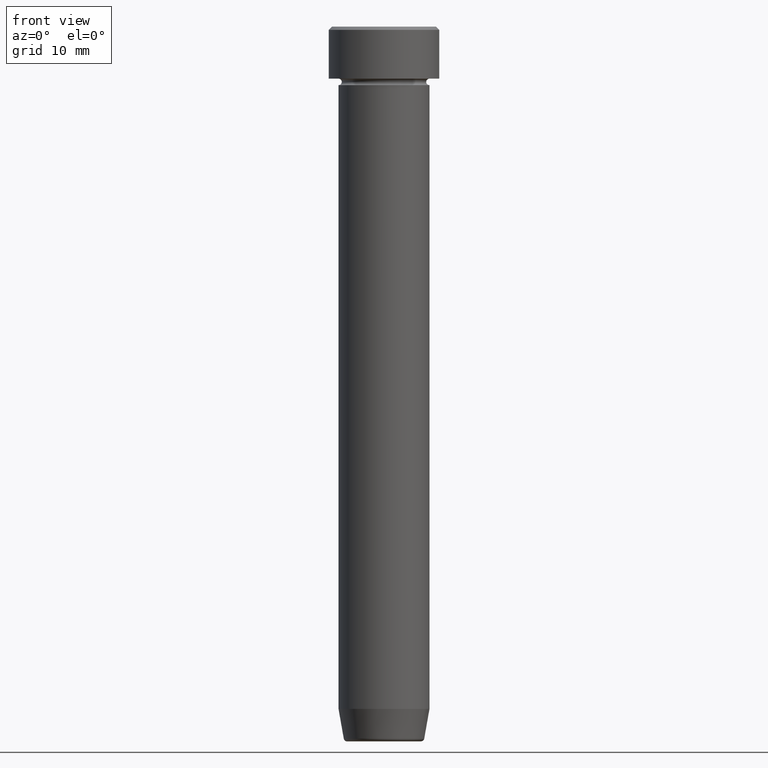
[diagram: clean part render]
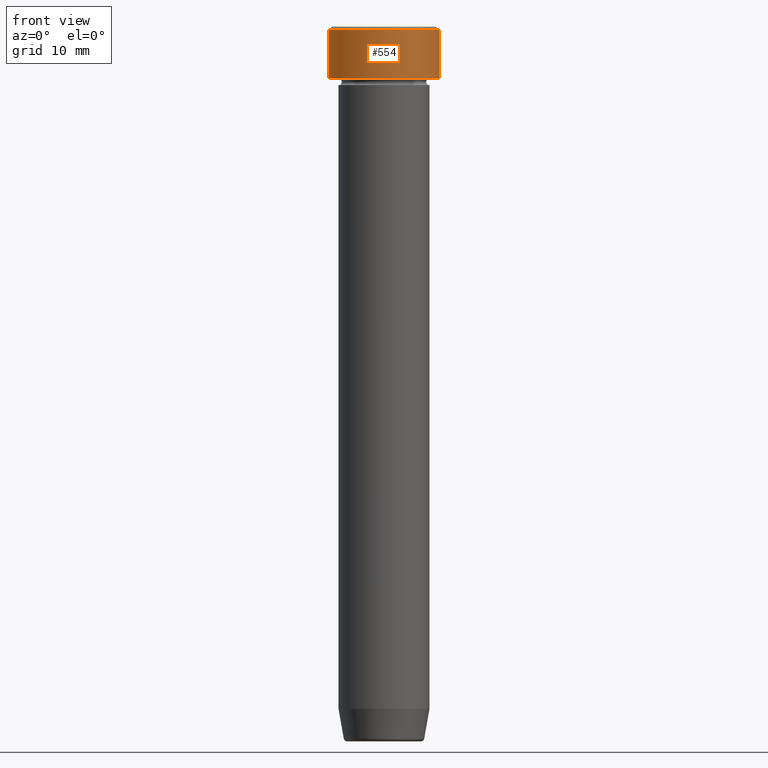
[diagram: same view with one face highlighted and labeled with its STEP entity id]
A machine part, front view. The second image highlights one B-rep face of the part: STEP entity #554.
In plain terms, the highlighted cylindrical surface (partial cylindrical patch) has radius 8.5 mm, axis along (-0, -0, 1).
Its self-contained STEP definition (entity closure, byte-faithful):
#15 = DIRECTION ( 'NONE',  ( 1.000000000000000000, 0.000000000000000000, 0.000000000000000000 ) ) ;
#19 = ORIENTED_EDGE ( 'NONE', *, *, #81, .T. ) ;
#42 = AXIS2_PLACEMENT_3D ( 'NONE', #391, #244, #248 ) ;
#55 = CARTESIAN_POINT ( 'NONE',  ( -8.500000000000000000, 1.040949779275250140E-15, 0.000000000000000000 ) ) ;
#60 = CARTESIAN_POINT ( 'NONE',  ( -8.500000000000000000, 1.040949779275250140E-15, -0.4999999999999987232 ) ) ;
#78 = ORIENTED_EDGE ( 'NONE', *, *, #473, .T. ) ;
#81 = EDGE_CURVE ( 'NONE', #235, #555, #186, .T. ) ;
#84 = VERTEX_POINT ( 'NONE', #60 ) ;
#93 = EDGE_CURVE ( 'NONE', #534, #84, #463, .T. ) ;
#135 = DIRECTION ( 'NONE',  ( -0.000000000000000000, -0.000000000000000000, 1.000000000000000000 ) ) ;
#151 = CARTESIAN_POINT ( 'NONE',  ( 0.000000000000000000, 0.000000000000000000, -8.000000000000000000 ) ) ;
#155 = EDGE_LOOP ( 'NONE', ( #426, #78, #19, #385 ) ) ;
#162 = DIRECTION ( 'NONE',  ( -0.000000000000000000, -0.000000000000000000, 1.000000000000000000 ) ) ;
#165 = CARTESIAN_POINT ( 'NONE',  ( 0.000000000000000000, 0.000000000000000000, -0.4999999999999987232 ) ) ;
#186 = LINE ( 'NONE', #289, #227 ) ;
#187 = VECTOR ( 'NONE', #162, 1000.000000000000000 ) ;
#194 = CYLINDRICAL_SURFACE ( 'NONE', #42, 8.500000000000000000 ) ;
#227 = VECTOR ( 'NONE', #387, 1000.000000000000000 ) ;
#235 = VERTEX_POINT ( 'NONE', #514 ) ;
#240 = CARTESIAN_POINT ( 'NONE',  ( -8.500000000000000000, 1.040949779275250140E-15, -8.000000000000000000 ) ) ;
#244 = DIRECTION ( 'NONE',  ( -0.000000000000000000, -0.000000000000000000, 1.000000000000000000 ) ) ;
#248 = DIRECTION ( 'NONE',  ( 1.000000000000000000, 0.000000000000000000, 0.000000000000000000 ) ) ;
#250 = AXIS2_PLACEMENT_3D ( 'NONE', #165, #267, #261 ) ;
#261 = DIRECTION ( 'NONE',  ( 1.000000000000000000, 0.000000000000000000, 0.000000000000000000 ) ) ;
#267 = DIRECTION ( 'NONE',  ( 0.000000000000000000, 0.000000000000000000, -1.000000000000000000 ) ) ;
#289 = CARTESIAN_POINT ( 'NONE',  ( 8.500000000000000000, 0.000000000000000000, 0.000000000000000000 ) ) ;
#333 = CARTESIAN_POINT ( 'NONE',  ( 8.500000000000000000, 0.000000000000000000, -0.4999999999999987232 ) ) ;
#377 = CIRCLE ( 'NONE', #250, 8.500000000000000000 ) ;
#385 = ORIENTED_EDGE ( 'NONE', *, *, #594, .T. ) ;
#387 = DIRECTION ( 'NONE',  ( -0.000000000000000000, -0.000000000000000000, 1.000000000000000000 ) ) ;
#388 = AXIS2_PLACEMENT_3D ( 'NONE', #151, #135, #15 ) ;
#391 = CARTESIAN_POINT ( 'NONE',  ( 0.000000000000000000, 0.000000000000000000, 0.000000000000000000 ) ) ;
#426 = ORIENTED_EDGE ( 'NONE', *, *, #93, .F. ) ;
#463 = LINE ( 'NONE', #55, #187 ) ;
#466 = CIRCLE ( 'NONE', #388, 8.500000000000000000 ) ;
#473 = EDGE_CURVE ( 'NONE', #534, #235, #466, .T. ) ;
#481 = FACE_OUTER_BOUND ( 'NONE', #155, .T. ) ;
#514 = CARTESIAN_POINT ( 'NONE',  ( 8.500000000000000000, 0.000000000000000000, -8.000000000000000000 ) ) ;
#534 = VERTEX_POINT ( 'NONE', #240 ) ;
#554 = ADVANCED_FACE ( 'NONE', ( #481 ), #194, .T. ) ;
#555 = VERTEX_POINT ( 'NONE', #333 ) ;
#594 = EDGE_CURVE ( 'NONE', #555, #84, #377, .T. ) ;